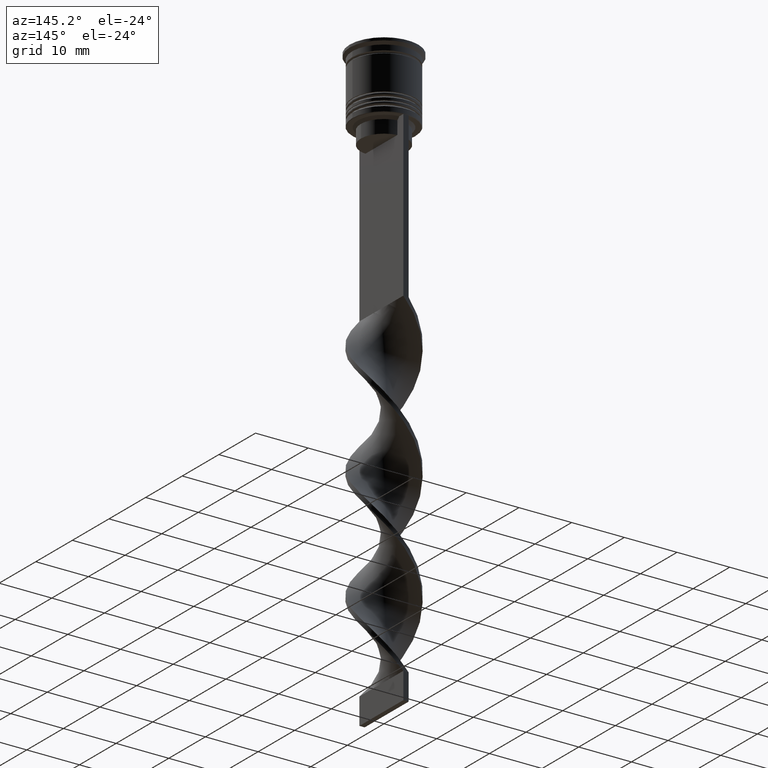
[diagram: clean part render]
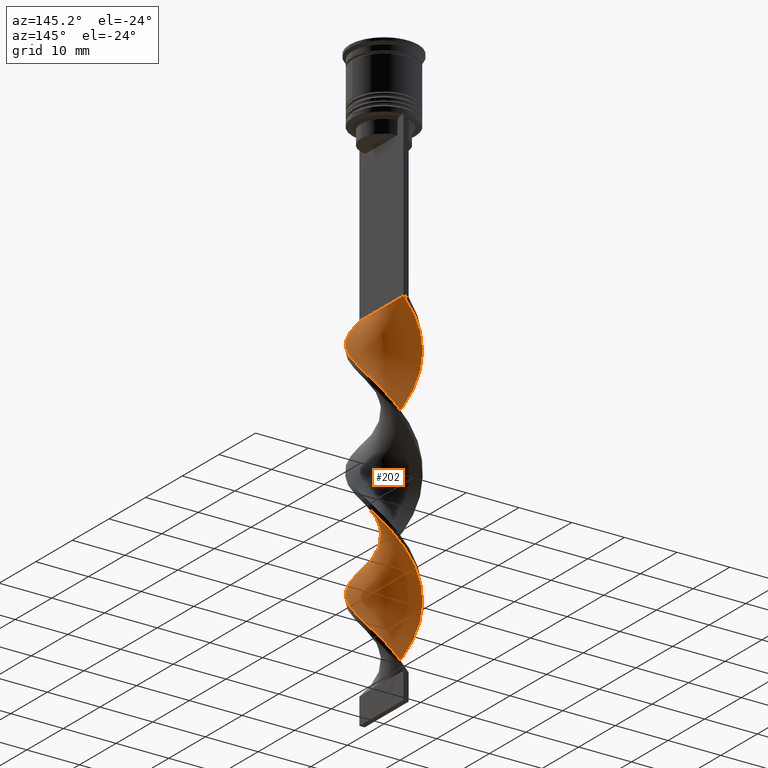
[diagram: same view with one face highlighted and labeled with its STEP entity id]
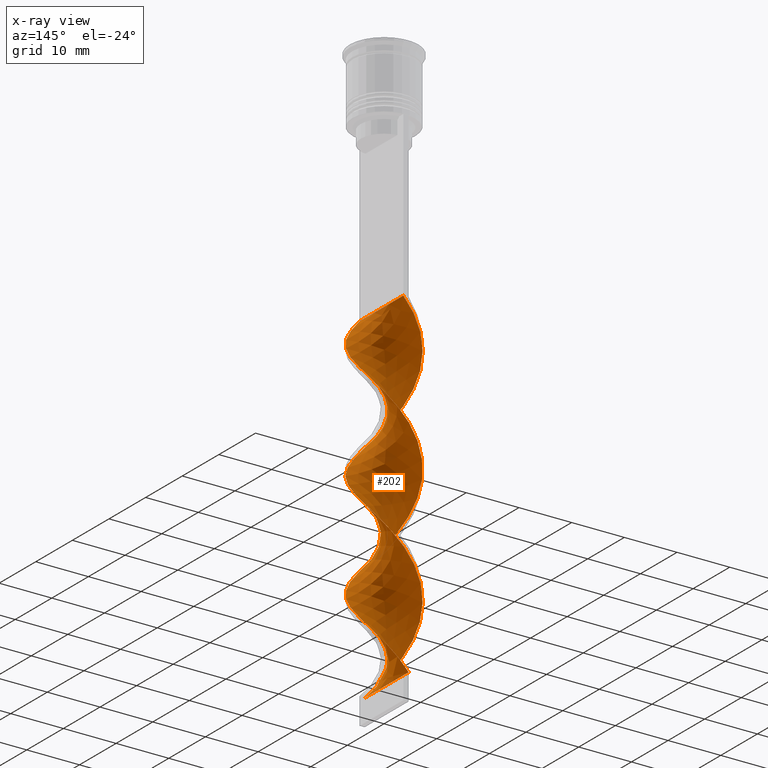
[diagram: x-ray of the same camera — body ghosted, the highlighted face saturated]
A machine part, auxiliary view. The second image highlights one B-rep face of the part: STEP entity #202.
The next image is the same camera in x-ray: the body ghosted, the highlighted face saturated — about 0% of this face is hidden behind the body in this view.
In plain terms, the highlighted face is a freeform B-spline surface patch.
Its self-contained STEP definition (entity closure, byte-faithful):
#15 = CARTESIAN_POINT ( 'NONE',  ( 3.018907784180934417, 5.260288998093234802, -103.3974358974358836 ) ) ;
#24 = CARTESIAN_POINT ( 'NONE',  ( 6.044068061194098007, -0.5036723384328427588, -75.50000000000000000 ) ) ;
#28 = CARTESIAN_POINT ( 'NONE',  ( 5.895984904460661369, 1.219574518580964329, -54.98717948717948190 ) ) ;
#31 = CARTESIAN_POINT ( 'NONE',  ( 4.352991323530321033, -4.159503159906209113, -91.08974358974359120 ) ) ;
#47 = CARTESIAN_POINT ( 'NONE',  ( 2.614197889543182107, -5.472697136436196708, -88.62820512820513841 ) ) ;
#61 = CARTESIAN_POINT ( 'NONE',  ( -0.5000000000000004441, -2.000000000000000888, -107.5000000000000000 ) ) ;
#88 = EDGE_CURVE ( 'NONE', #701, #3278, #2685, .T. ) ;
#104 = CARTESIAN_POINT ( 'NONE',  ( 2.345611019436006472, 5.545097739941142301, -104.2179487179487012 ) ) ;
#116 = CARTESIAN_POINT ( 'NONE',  ( -4.352991323530323697, -4.159503159906208225, -59.91025641025640880 ) ) ;
#137 = CARTESIAN_POINT ( 'NONE',  ( -4.190053366537507706, 4.384962638200773810, -91.91025641025643722 ) ) ;
#144 = CARTESIAN_POINT ( 'NONE',  ( 3.604480575359220840, 4.822625818147002086, -102.5769230769230660 ) ) ;
#154 = CARTESIAN_POINT ( 'NONE',  ( 2.345611019436006028, -5.545097739941144077, -68.11538461538459899 ) ) ;
#159 = CARTESIAN_POINT ( 'NONE',  ( 2.345611019436006028, -5.545097739941144077, -68.11538461538459899 ) ) ;
#174 = CARTESIAN_POINT ( 'NONE',  ( 0.9504230770123223149, 5.945308736700090080, -63.19230769230768630 ) ) ;
#176 = CARTESIAN_POINT ( 'NONE',  ( 1.921364894438372550, -5.705993072412533174, -45.14102564102563520 ) ) ;
#197 = CARTESIAN_POINT ( 'NONE',  ( -0.9504230770123205385, 5.945308736700091856, -87.80769230769230660 ) ) ;
#199 = DIRECTION ( 'NONE',  ( 0.000000000000000000, 1.000000000000000000, 0.000000000000000000 ) ) ;
#202 = ADVANCED_FACE ( 'NONE', ( #1542 ), #1673, .T. ) ;
#212 = CARTESIAN_POINT ( 'NONE',  ( 1.921364894438372550, -5.705993072412533174, -45.14102564102563520 ) ) ;
#214 = CARTESIAN_POINT ( 'NONE',  ( -4.190053366537509483, -4.384962638200768481, -80.42307692307691980 ) ) ;
#230 = CARTESIAN_POINT ( 'NONE',  ( -3.604480575359221728, -4.822625818147002086, -81.24358974358973740 ) ) ;
#234 = CARTESIAN_POINT ( 'NONE',  ( 5.117688277455212820, -3.254798188466756947, -72.21794871794871540 ) ) ;
#237 = CARTESIAN_POINT ( 'NONE',  ( 1.921364894438378323, 5.705993072412532285, -84.52564102564103621 ) ) ;
#243 = CARTESIAN_POINT ( 'NONE',  ( 0.5000000000000002220, -5.999999999999999112, -43.50000000000000000 ) ) ;
#245 = CARTESIAN_POINT ( 'NONE',  ( 1.228531899333563437, -5.939289008388868751, -86.98717948717948900 ) ) ;
#258 = CARTESIAN_POINT ( 'NONE',  ( 2.345611019436006472, 5.545097739941142301, -104.2179487179487012 ) ) ;
#272 = CARTESIAN_POINT ( 'NONE',  ( 5.895984904460661369, 1.219574518580964329, -97.65384615384614619 ) ) ;
#283 = CARTESIAN_POINT ( 'NONE',  ( 4.352991323530323697, 4.159503159906207337, -81.24358974358973740 ) ) ;
#304 = CARTESIAN_POINT ( 'NONE',  ( 5.895984904460661369, 1.219574518580964329, -97.65384615384614619 ) ) ;
#308 = CARTESIAN_POINT ( 'NONE',  ( -4.858046446425391629, 3.630954320453866568, -70.57692307692306599 ) ) ;
#319 = ORIENTED_EDGE ( 'NONE', *, *, #524, .F. ) ;
#320 = CARTESIAN_POINT ( 'NONE',  ( 4.352991323530321033, -4.159503159906209113, -91.08974358974359120 ) ) ;
#324 = CARTESIAN_POINT ( 'NONE',  ( 1.228531899333563215, -5.939289008388868751, -86.98717948717948900 ) ) ;
#374 = CARTESIAN_POINT ( 'NONE',  ( 3.018907784180934861, 5.260288998093234802, -103.3974358974358694 ) ) ;
#399 = CARTESIAN_POINT ( 'NONE',  ( -1.921364894438374993, -5.705993072412534062, -63.19230769230768630 ) ) ;
#404 = CARTESIAN_POINT ( 'NONE',  ( -0.5000000000000009992, -6.000000000000000888, -107.5000000000000000 ) ) ;
#420 = CARTESIAN_POINT ( 'NONE',  ( -4.858046446425395182, -3.630954320453863460, -101.7564102564102484 ) ) ;
#422 = CARTESIAN_POINT ( 'NONE',  ( -5.895984904460663145, 1.219574518580966771, -53.34615384615383959 ) ) ;
#424 = CARTESIAN_POINT ( 'NONE',  ( -5.895984904460663145, 1.219574518580966771, -53.34615384615383959 ) ) ;
#436 = CARTESIAN_POINT ( 'NONE',  ( 1.228531899333563215, -5.939289008388868751, -44.32051282051282470 ) ) ;
#437 = CARTESIAN_POINT ( 'NONE',  ( -5.117688277455214596, 3.254798188466754727, -93.55128205128204399 ) ) ;
#458 = CARTESIAN_POINT ( 'NONE',  ( 5.585824691029638522, -2.362838774426348376, -50.88461538461537970 ) ) ;
#459 = CARTESIAN_POINT ( 'NONE',  ( -5.895984904460663145, 1.219574518580966771, -96.01282051282051100 ) ) ;
#463 = CARTESIAN_POINT ( 'NONE',  ( -5.117688277455214596, 3.254798188466754727, -50.88461538461537970 ) ) ;
#478 = CARTESIAN_POINT ( 'NONE',  ( 3.847936200635251769, 4.688051999358553878, -82.06410256410255499 ) ) ;
#494 = CARTESIAN_POINT ( 'NONE',  ( 0.5000000000000002220, 6.000000000000000888, -43.50000000000000000 ) ) ;
#495 = CARTESIAN_POINT ( 'NONE',  ( -3.847936200635249104, 4.688051999358553878, -68.93589743589743080 ) ) ;
#498 = CARTESIAN_POINT ( 'NONE',  ( -4.352991323530323697, -4.159503159906208225, -59.91025641025640880 ) ) ;
#511 = CARTESIAN_POINT ( 'NONE',  ( 3.847936200635249993, -4.688051999358552990, -47.60256410256408799 ) ) ;
#518 = CARTESIAN_POINT ( 'NONE',  ( -3.018907784180934417, 5.260288998093236579, -90.26923076923077360 ) ) ;
#524 = EDGE_CURVE ( 'NONE', #3278, #830, #3370, .T. ) ;
#527 = CARTESIAN_POINT ( 'NONE',  ( -2.345611019436009581, -5.545097739941142301, -82.88461538461537259 ) ) ;
#529 = CARTESIAN_POINT ( 'NONE',  ( 5.988975108237873712, -0.9574036273986641365, -95.19230769230769340 ) ) ;
#540 = EDGE_LOOP ( 'NONE', ( #2429, #2805, #1988, #319 ) ) ;
#541 = CARTESIAN_POINT ( 'NONE',  ( 2.614197889543182107, -5.472697136436196708, -88.62820512820512420 ) ) ;
#548 = CARTESIAN_POINT ( 'NONE',  ( 3.847936200635252213, 4.688051999358553878, -82.06410256410255499 ) ) ;
#554 = CARTESIAN_POINT ( 'NONE',  ( -5.117688277455215484, -3.254798188466750286, -78.78205128205127039 ) ) ;
#565 = CARTESIAN_POINT ( 'NONE',  ( -3.231067045089217604, -5.080374567897375293, -104.2179487179487012 ) ) ;
#573 = CARTESIAN_POINT ( 'NONE',  ( -4.352991323530320145, 4.159503159906209113, -69.75641025641024839 ) ) ;
#591 = CARTESIAN_POINT ( 'NONE',  ( -5.895984904460662257, -1.219574518580961220, -76.32051282051281760 ) ) ;
#607 = CARTESIAN_POINT ( 'NONE',  ( 2.345611019436006472, 5.545097739941142301, -61.55128205128204399 ) ) ;
#667 = CARTESIAN_POINT ( 'NONE',  ( -3.604480575359219952, 4.822625818147005639, -91.08974358974359120 ) ) ;
#669 = CARTESIAN_POINT ( 'NONE',  ( -4.190053366537507706, 4.384962638200773810, -49.24358974358973740 ) ) ;
#679 = CARTESIAN_POINT ( 'NONE',  ( 5.432795012591220107, 2.595137443597919980, -99.29487179487178139 ) ) ;
#689 = CARTESIAN_POINT ( 'NONE',  ( 2.614197889543185216, 5.472697136436197596, -83.70512820512820440 ) ) ;
#691 = CARTESIAN_POINT ( 'NONE',  ( -5.747901747727229171, 1.935476698729089895, -52.52564102564103621 ) ) ;
#692 = CARTESIAN_POINT ( 'NONE',  ( 1.672314254691075641, -5.829906481789053352, -67.29487179487178139 ) ) ;
#701 = VERTEX_POINT ( 'NONE', #2845 ) ;
#707 = CARTESIAN_POINT ( 'NONE',  ( 5.747901747727229171, -1.935476698729089451, -73.85897435897436480 ) ) ;
#709 = CARTESIAN_POINT ( 'NONE',  ( -5.787399899633758338, -1.660121200912505479, -56.62820512820513130 ) ) ;
#724 = CARTESIAN_POINT ( 'NONE',  ( -4.653870821996361151, 3.819880413333764047, -92.73076923076922640 ) ) ;
#727 = CARTESIAN_POINT ( 'NONE',  ( 0.5000000000000002220, -6.000000000000000000, -43.50000000000000000 ) ) ;
#729 = CARTESIAN_POINT ( 'NONE',  ( -0.2285318993335630489, 6.060710991611131249, -44.32051282051282470 ) ) ;
#742 = CARTESIAN_POINT ( 'NONE',  ( 5.747901747727227395, 1.935476698729089229, -55.80769230769230660 ) ) ;
#744 = EDGE_CURVE ( 'NONE', #830, #3333, #2501, .T. ) ;
#745 = CARTESIAN_POINT ( 'NONE',  ( 3.231067045089220713, 5.080374567897373517, -82.88461538461537259 ) ) ;
#763 = CARTESIAN_POINT ( 'NONE',  ( 5.432795012591220107, 2.595137443597919980, -56.62820512820513130 ) ) ;
#771 = CARTESIAN_POINT ( 'NONE',  ( -3.847936200635251769, -4.688051999358553878, -103.3974358974358836 ) ) ;
#781 = CARTESIAN_POINT ( 'NONE',  ( -5.117688277455215484, -3.254798188466750730, -78.78205128205127039 ) ) ;
#795 = CARTESIAN_POINT ( 'NONE',  ( 6.044068061194096231, 0.5036723384328413156, -96.83333333333332860 ) ) ;
#798 = CARTESIAN_POINT ( 'NONE',  ( 5.988975108237873712, -0.9574036273986641365, -52.52564102564103621 ) ) ;
#805 = CARTESIAN_POINT ( 'NONE',  ( 6.016521584715985860, 0.2268656444829068586, -76.32051282051281760 ) ) ;
#830 = VERTEX_POINT ( 'NONE', #404 ) ;
#837 = CARTESIAN_POINT ( 'NONE',  ( -1.228531899333566324, -5.939289008388870528, -106.6794871794871824 ) ) ;
#843 = CARTESIAN_POINT ( 'NONE',  ( -1.672314254691079416, -5.829906481789051576, -83.70512820512820440 ) ) ;
#860 = CARTESIAN_POINT ( 'NONE',  ( -1.228531899333561883, 5.939289008388868751, -65.65384615384614619 ) ) ;
#881 = CARTESIAN_POINT ( 'NONE',  ( 3.231067045089215828, -5.080374567897374405, -46.78205128205127750 ) ) ;
#898 = CARTESIAN_POINT ( 'NONE',  ( 0.2285318993335655469, 6.060710991611128584, -106.6794871794871682 ) ) ;
#937 = CARTESIAN_POINT ( 'NONE',  ( 1.672314254691079194, 5.829906481789051576, -105.0384615384615330 ) ) ;
#947 = CARTESIAN_POINT ( 'NONE',  ( -3.847936200635251325, -4.688051999358553878, -103.3974358974358694 ) ) ;
#967 = CARTESIAN_POINT ( 'NONE',  ( 5.585824691029641187, 2.362838774426345712, -78.78205128205127039 ) ) ;
#971 = CARTESIAN_POINT ( 'NONE',  ( -0.5000000000000009992, -6.000000000000000888, -64.83333333333332860 ) ) ;
#987 = CARTESIAN_POINT ( 'NONE',  ( 1.672314254691078972, 5.829906481789051576, -62.37179487179486870 ) ) ;
#988 = CARTESIAN_POINT ( 'NONE',  ( -2.614197889543184328, -5.472697136436197596, -105.0384615384615330 ) ) ;
#1008 = CARTESIAN_POINT ( 'NONE',  ( 5.787399899633758338, 1.660121200912505923, -77.96153846153845279 ) ) ;
#1010 = CARTESIAN_POINT ( 'NONE',  ( -5.585824691029640299, -2.362838774426348376, -57.44871794871794890 ) ) ;
#1013 = CARTESIAN_POINT ( 'NONE',  ( -0.4999999999999994449, 5.999999999999999112, -107.5000000000000000 ) ) ;
#1024 = CARTESIAN_POINT ( 'NONE',  ( 6.016521584715984972, -0.2268656444829120489, -53.34615384615383959 ) ) ;
#1026 = CARTESIAN_POINT ( 'NONE',  ( 0.5000000000000002220, -5.999999999999999112, -43.50000000000000000 ) ) ;
#1042 = CARTESIAN_POINT ( 'NONE',  ( 5.117688277455212820, 3.254798188466753395, -57.44871794871794890 ) ) ;
#1045 = CARTESIAN_POINT ( 'NONE',  ( -5.432795012591220107, -2.595137443597920868, -77.96153846153845279 ) ) ;
#1050 = CARTESIAN_POINT ( 'NONE',  ( -6.044068061194098007, 0.5036723384328419817, -54.16666666666666430 ) ) ;
#1062 = CARTESIAN_POINT ( 'NONE',  ( 4.858046446425392517, -3.630954320453864348, -49.24358974358974450 ) ) ;
#1063 = CARTESIAN_POINT ( 'NONE',  ( -2.614197889543180331, 5.472697136436197596, -67.29487179487178139 ) ) ;
#1067 = CARTESIAN_POINT ( 'NONE',  ( 4.190053366537505930, -4.384962638200776475, -70.57692307692306599 ) ) ;
#1071 = CARTESIAN_POINT ( 'NONE',  ( -4.858046446425395182, -3.630954320453863460, -101.7564102564102484 ) ) ;
#1077 = CARTESIAN_POINT ( 'NONE',  ( -5.432795012591220107, -2.595137443597920868, -77.96153846153845279 ) ) ;
#1078 = CARTESIAN_POINT ( 'NONE',  ( 4.858046446425392517, -3.630954320453864348, -91.91025641025643722 ) ) ;
#1085 = CARTESIAN_POINT ( 'NONE',  ( -0.2285318993335630489, 6.060710991611131249, -86.98717948717948900 ) ) ;
#1093 = CARTESIAN_POINT ( 'NONE',  ( 3.847936200635249993, -4.688051999358552990, -90.26923076923077360 ) ) ;
#1100 = CARTESIAN_POINT ( 'NONE',  ( -5.432795012591220996, 2.595137443597922644, -94.37179487179486159 ) ) ;
#1116 = CARTESIAN_POINT ( 'NONE',  ( 4.858046446425397846, 3.630954320453860795, -80.42307692307691980 ) ) ;
#1137 = CARTESIAN_POINT ( 'NONE',  ( -5.585824691029637634, 2.362838774426351485, -72.21794871794871540 ) ) ;
#1140 = CARTESIAN_POINT ( 'NONE',  ( 5.221935568727515076, -2.996896547440107028, -92.73076923076922640 ) ) ;
#1155 = CARTESIAN_POINT ( 'NONE',  ( -6.016521584715984972, 0.2268656444829141028, -74.67948717948718240 ) ) ;
#1168 = CARTESIAN_POINT ( 'NONE',  ( -0.5000000000000000000, 1.999999999999999112, -107.5000000000000000 ) ) ;
#1220 = CARTESIAN_POINT ( 'NONE',  ( -4.352991323530323697, -4.159503159906208225, -102.5769230769230660 ) ) ;
#1239 = CARTESIAN_POINT ( 'NONE',  ( -3.231067045089217604, -5.080374567897375293, -104.2179487179487012 ) ) ;
#1244 = CARTESIAN_POINT ( 'NONE',  ( -1.921364894438374993, -5.705993072412534062, -63.19230769230768630 ) ) ;
#1257 = CARTESIAN_POINT ( 'NONE',  ( -3.231067045089217604, -5.080374567897375293, -61.55128205128204399 ) ) ;
#1281 = CARTESIAN_POINT ( 'NONE',  ( 0.2285318993335655469, 6.060710991611129472, -64.01282051282051100 ) ) ;
#1282 = CARTESIAN_POINT ( 'NONE',  ( -1.228531899333566546, -5.939289008388870528, -64.01282051282051100 ) ) ;
#1287 = CARTESIAN_POINT ( 'NONE',  ( -0.9504230770123205385, 5.945308736700091856, -45.14102564102563520 ) ) ;
#1305 = CARTESIAN_POINT ( 'NONE',  ( -1.228531899333566546, -5.939289008388870528, -106.6794871794871682 ) ) ;
#1308 = CARTESIAN_POINT ( 'NONE',  ( -5.432795012591220996, 2.595137443597922644, -51.70512820512820440 ) ) ;
#1320 = CARTESIAN_POINT ( 'NONE',  ( 5.432795012591220107, 2.595137443597919980, -56.62820512820513130 ) ) ;
#1321 = CARTESIAN_POINT ( 'NONE',  ( 5.787399899633755673, -1.660121200912507033, -51.70512820512820440 ) ) ;
#1338 = CARTESIAN_POINT ( 'NONE',  ( 4.653870821996360263, 3.819880413333762270, -58.26923076923076650 ) ) ;
#1340 = CARTESIAN_POINT ( 'NONE',  ( 0.2285318993335655469, 6.060710991611128584, -64.01282051282051100 ) ) ;
#1344 = CARTESIAN_POINT ( 'NONE',  ( 5.432795012591220996, -2.595137443597923532, -73.03846153846153300 ) ) ;
#1347 = CARTESIAN_POINT ( 'NONE',  ( -4.190053366537507706, 4.384962638200774698, -91.91025641025643722 ) ) ;
#1355 = CARTESIAN_POINT ( 'NONE',  ( 6.044068061194096231, 0.5036723384328413156, -54.16666666666666430 ) ) ;
#1356 = CARTESIAN_POINT ( 'NONE',  ( 3.231067045089215828, -5.080374567897374405, -89.44871794871794179 ) ) ;
#1362 = CARTESIAN_POINT ( 'NONE',  ( -1.672314254691077640, 5.829906481789053352, -88.62820512820512420 ) ) ;
#1368 = CARTESIAN_POINT ( 'NONE',  ( 3.604480575359220840, 4.822625818147002086, -102.5769230769230660 ) ) ;
#1385 = CARTESIAN_POINT ( 'NONE',  ( -5.585824691029636746, 2.362838774426351485, -72.21794871794871540 ) ) ;
#1393 = CARTESIAN_POINT ( 'NONE',  ( -5.747901747727229171, 1.935476698729089895, -95.19230769230769340 ) ) ;
#1403 = CARTESIAN_POINT ( 'NONE',  ( 3.231067045089215828, -5.080374567897374405, -89.44871794871794179 ) ) ;
#1412 = CARTESIAN_POINT ( 'NONE',  ( -5.221935568727517740, -2.996896547440106584, -100.9358974358974308 ) ) ;
#1417 = CARTESIAN_POINT ( 'NONE',  ( 5.747901747727227395, 1.935476698729089007, -98.47435897435896379 ) ) ;
#1421 = CARTESIAN_POINT ( 'NONE',  ( -5.221935568727515076, 2.996896547440107028, -71.39743589743588359 ) ) ;
#1434 = CARTESIAN_POINT ( 'NONE',  ( -1.921364894438370552, 5.705993072412533174, -66.47435897435896379 ) ) ;
#1515 =( BOUNDED_CURVE ( )  B_SPLINE_CURVE ( 2, ( #243, #436, #212, #2933, #2413, #1849, #2681, #1062, #2951, #458, #1556, #1612, #1024, #1355, #3242, #742, #1320, #1042, #1338, #3279, #3537, #3480, #2659, #987, #174, #1281, #1579, #2990, #2392, #3502, #2119, #3224, #573, #308, #1421, #1385, #1717, #2782, #2514, #2530, #3575, #3055, #1077, #554, #1989, #2235, #3344, #2208, #527, #843, #2817, #3294, #2803, #324, #1936, #541, #1403, #1093, #31, #1697, #1140, #2763, #1646, #2189, #2750, #795, #272, #3075, #2466, #2496, #1661, #3313, #1368, #15, #258, #3330, #1679, #2252, #3608 ),
 .UNSPECIFIED., .F., .T. ) 
 B_SPLINE_CURVE_WITH_KNOTS ( ( 3, 2, 2, 2, 2, 2, 2, 2, 2, 2, 2, 2, 2, 2, 2, 2, 2, 2, 2, 2, 2, 2, 2, 2, 2, 2, 2, 2, 2, 2, 2, 2, 2, 2, 2, 2, 2, 2, 2, 3 ),
 ( 0.000000000000000000, 0.01923076923076923184, 0.03846153846153846367, 0.05769230769230768857, 0.07692307692307692735, 0.09615384615384615918, 0.1153846153846153771, 0.1346153846153846090, 0.1538461538461538547, 0.1730769230769230449, 0.1923076923076923184, 0.2115384615384615363, 0.2307692307692307543, 0.2500000000000000000, 0.2692307692307692180, 0.2884615384615384359, 0.3076923076923077094, 0.3269230769230769273, 0.3461538461538460898, 0.3653846153846153633, 0.3846153846153846367, 0.4038461538461539102, 0.4230769230769230727, 0.4423076923076922906, 0.4615384615384615086, 0.4807692307692307820, 0.5000000000000000000, 0.5192307692307692735, 0.5384615384615384359, 0.5576923076923077094, 0.5769230769230768718, 0.5961538461538461453, 0.6153846153846154188, 0.6346153846153845812, 0.6538461538461538547, 0.6730769230769230171, 0.6923076923076921796, 0.7115384615384615641, 0.7307692307692307265, 0.7500000000000000000 ),
 .UNSPECIFIED. ) 
 CURVE ( )  GEOMETRIC_REPRESENTATION_ITEM ( )  RATIONAL_B_SPLINE_CURVE ( ( 1.000000000000000000, 0.9927088740980539727, 1.000000000000000000, 0.9927088740980539727, 1.000000000000000000, 0.9927088740980539727, 1.000000000000000000, 0.9927088740980539727, 1.000000000000000000, 0.9927088740980539727, 1.000000000000000000, 0.9927088740980539727, 1.000000000000000000, 0.9927088740980539727, 1.000000000000000000, 0.9927088740980539727, 1.000000000000000000, 0.9927088740980539727, 1.000000000000000000, 0.9927088740980539727, 1.000000000000000000, 0.9927088740980539727, 1.000000000000000000, 0.9927088740980539727, 1.000000000000000000, 0.9927088740980539727, 1.000000000000000000, 0.9927088740980539727, 1.000000000000000000, 0.9927088740980539727, 1.000000000000000000, 0.9927088740980539727, 1.000000000000000000, 0.9927088740980539727, 1.000000000000000000, 0.9927088740980539727, 1.000000000000000000, 0.9927088740980539727, 1.000000000000000000, 0.9927088740980539727, 1.000000000000000000, 0.9927088740980539727, 1.000000000000000000, 0.9927088740980539727, 1.000000000000000000, 0.9927088740980539727, 1.000000000000000000, 0.9927088740980539727, 1.000000000000000000, 0.9927088740980539727, 1.000000000000000000, 0.9927088740980539727, 1.000000000000000000, 0.9927088740980539727, 1.000000000000000000, 0.9927088740980539727, 1.000000000000000000, 0.9927088740980539727, 1.000000000000000000, 0.9927088740980539727, 1.000000000000000000, 0.9927088740980539727, 1.000000000000000000, 0.9927088740980539727, 1.000000000000000000, 0.9927088740980539727, 1.000000000000000000, 0.9927088740980539727, 1.000000000000000000, 0.9927088740980539727, 1.000000000000000000, 0.9927088740980539727, 1.000000000000000000, 0.9927088740980539727, 1.000000000000000000, 0.9927088740980539727, 1.000000000000000000, 0.9927088740980539727, 1.000000000000000000 ) ) 
 REPRESENTATION_ITEM ( '' )  );
#1520 = CARTESIAN_POINT ( 'NONE',  ( 5.117688277455212820, -3.254798188466757392, -72.21794871794871540 ) ) ;
#1540 = CARTESIAN_POINT ( 'NONE',  ( 4.190053366537505930, -4.384962638200775586, -70.57692307692306599 ) ) ;
#1542 = FACE_OUTER_BOUND ( 'NONE', #540, .T. ) ;
#1544 = CARTESIAN_POINT ( 'NONE',  ( -5.221935568727517740, -2.996896547440106584, -58.26923076923076650 ) ) ;
#1556 = CARTESIAN_POINT ( 'NONE',  ( 5.787399899633755673, -1.660121200912507033, -51.70512820512820440 ) ) ;
#1558 = CARTESIAN_POINT ( 'NONE',  ( -5.432795012591220996, 2.595137443597922644, -94.37179487179486159 ) ) ;
#1579 = CARTESIAN_POINT ( 'NONE',  ( -0.4999999999999994449, 5.999999999999999112, -64.83333333333332860 ) ) ;
#1580 = CARTESIAN_POINT ( 'NONE',  ( -5.988975108237874601, -0.9574036273986639145, -98.47435897435896379 ) ) ;
#1596 = CARTESIAN_POINT ( 'NONE',  ( 1.921364894438378323, 5.705993072412532285, -84.52564102564103621 ) ) ;
#1612 = CARTESIAN_POINT ( 'NONE',  ( 5.988975108237873712, -0.9574036273986640255, -52.52564102564102910 ) ) ;
#1613 = CARTESIAN_POINT ( 'NONE',  ( 5.585824691029639411, -2.362838774426348376, -93.55128205128204399 ) ) ;
#1617 = CARTESIAN_POINT ( 'NONE',  ( -3.847936200635251769, -4.688051999358553878, -60.73076923076922640 ) ) ;
#1621 = CARTESIAN_POINT ( 'NONE',  ( 5.988975108237876377, 0.9574036273986615830, -77.14102564102563520 ) ) ;
#1631 = CARTESIAN_POINT ( 'NONE',  ( 1.672314254691079194, 5.829906481789051576, -62.37179487179486870 ) ) ;
#1637 = CARTESIAN_POINT ( 'NONE',  ( -3.604480575359219952, 4.822625818147005639, -91.08974358974359120 ) ) ;
#1646 = CARTESIAN_POINT ( 'NONE',  ( 5.787399899633755673, -1.660121200912507033, -94.37179487179486159 ) ) ;
#1648 = CARTESIAN_POINT ( 'NONE',  ( 6.016521584715984972, -0.2268656444829120489, -96.01282051282051100 ) ) ;
#1655 = CARTESIAN_POINT ( 'NONE',  ( 1.228531899333567212, 5.939289008388870528, -85.34615384615385381 ) ) ;
#1661 = CARTESIAN_POINT ( 'NONE',  ( 4.653870821996360263, 3.819880413333762270, -100.9358974358974308 ) ) ;
#1669 = CARTESIAN_POINT ( 'NONE',  ( -5.988975108237876377, -0.9574036273986638035, -98.47435897435896379 ) ) ;
#1673 =( BOUNDED_SURFACE ( )  B_SPLINE_SURFACE ( 1, 2, ( 
 ( #3167, #1874, #3448, #1815, #2700, #2336, #2062, #669, #3464, #2082, #3189, #691, #422, #2374, #3485, #3208, #709, #1010, #2937, #3165, #116, #2624, #1257, #2953, #399, #1282, #2353, #2934, #3226, #1812, #154, #3445, #1872, #1540, #3462, #1520, #2973, #707, #2334, #1833, #3244, #3504, #1008, #967, #1792, #3482, #3521, #478, #745, #689, #1596, #2641, #2371, #2079, #197, #1850, #2414, #3186, #667, #137, #724, #437, #1558, #2120, #459, #2917, #2137, #1580, #2682, #2897, #2060, #420, #1220, #947, #1239, #988, #2101, #1305, #3206 ),
 ( #1026, #2660, #176, #2394, #881, #511, #2450, #2991, #2002, #3296, #1321, #798, #2267, #2527, #28, #3560, #763, #2467, #2543, #3106, #3382, #3280, #607, #1631, #2734, #1340, #2813, #860, #1434, #1063, #3264, #495, #2248, #1921, #3024, #1137, #1984, #2175, #1155, #3092, #591, #2159, #1045, #781, #2699, #214, #230, #3007, #2432, #1905, #2190, #3576, #3360, #245, #1713, #47, #1356, #1890, #320, #1078, #3539, #1613, #2714, #529, #1648, #2799, #304, #1417, #679, #2829, #2033, #2051, #144, #374, #104, #937, #1804, #898, #2906 ) ),
 .UNSPECIFIED., .F., .F., .F. ) 
 B_SPLINE_SURFACE_WITH_KNOTS ( ( 2, 2 ),
 ( 3, 2, 2, 2, 2, 2, 2, 2, 2, 2, 2, 2, 2, 2, 2, 2, 2, 2, 2, 2, 2, 2, 2, 2, 2, 2, 2, 2, 2, 2, 2, 2, 2, 2, 2, 2, 2, 2, 2, 3 ),
 ( 0.000000000000000000, 1.000000000000000000 ),
 ( 0.000000000000000000, 0.01923076923076923184, 0.03846153846153846367, 0.05769230769230769551, 0.07692307692307692735, 0.09615384615384615918, 0.1153846153846153910, 0.1346153846153846090, 0.1538461538461538547, 0.1730769230769230727, 0.1923076923076923184, 0.2115384615384615363, 0.2307692307692307820, 0.2500000000000000000, 0.2692307692307692180, 0.2884615384615384359, 0.3076923076923077094, 0.3269230769230769273, 0.3461538461538461453, 0.3653846153846153633, 0.3846153846153846367, 0.4038461538461538547, 0.4230769230769230727, 0.4423076923076922906, 0.4615384615384615641, 0.4807692307692307820, 0.5000000000000000000, 0.5192307692307692735, 0.5384615384615384359, 0.5576923076923077094, 0.5769230769230768718, 0.5961538461538461453, 0.6153846153846154188, 0.6346153846153845812, 0.6538461538461538547, 0.6730769230769231282, 0.6923076923076922906, 0.7115384615384615641, 0.7307692307692307265, 0.7500000000000000000 ),
 .UNSPECIFIED. ) 
 GEOMETRIC_REPRESENTATION_ITEM ( )  RATIONAL_B_SPLINE_SURFACE ( (
 ( 1.000000000000000000, 0.9927088740980539727, 1.000000000000000000, 0.9927088740980539727, 1.000000000000000000, 0.9927088740980539727, 1.000000000000000000, 0.9927088740980539727, 1.000000000000000000, 0.9927088740980539727, 1.000000000000000000, 0.9927088740980539727, 1.000000000000000000, 0.9927088740980539727, 1.000000000000000000, 0.9927088740980539727, 1.000000000000000000, 0.9927088740980539727, 1.000000000000000000, 0.9927088740980539727, 1.000000000000000000, 0.9927088740980539727, 1.000000000000000000, 0.9927088740980539727, 1.000000000000000000, 0.9927088740980539727, 1.000000000000000000, 0.9927088740980539727, 1.000000000000000000, 0.9927088740980539727, 1.000000000000000000, 0.9927088740980539727, 1.000000000000000000, 0.9927088740980539727, 1.000000000000000000, 0.9927088740980539727, 1.000000000000000000, 0.9927088740980539727, 1.000000000000000000, 0.9927088740980539727, 1.000000000000000000, 0.9927088740980539727, 1.000000000000000000, 0.9927088740980539727, 1.000000000000000000, 0.9927088740980539727, 1.000000000000000000, 0.9927088740980539727, 1.000000000000000000, 0.9927088740980539727, 1.000000000000000000, 0.9927088740980539727, 1.000000000000000000, 0.9927088740980539727, 1.000000000000000000, 0.9927088740980539727, 1.000000000000000000, 0.9927088740980539727, 1.000000000000000000, 0.9927088740980539727, 1.000000000000000000, 0.9927088740980539727, 1.000000000000000000, 0.9927088740980539727, 1.000000000000000000, 0.9927088740980539727, 1.000000000000000000, 0.9927088740980539727, 1.000000000000000000, 0.9927088740980539727, 1.000000000000000000, 0.9927088740980539727, 1.000000000000000000, 0.9927088740980539727, 1.000000000000000000, 0.9927088740980539727, 1.000000000000000000, 0.9927088740980539727, 1.000000000000000000),
 ( 1.000000000000000000, 0.9927088740980539727, 1.000000000000000000, 0.9927088740980539727, 1.000000000000000000, 0.9927088740980539727, 1.000000000000000000, 0.9927088740980539727, 1.000000000000000000, 0.9927088740980539727, 1.000000000000000000, 0.9927088740980539727, 1.000000000000000000, 0.9927088740980539727, 1.000000000000000000, 0.9927088740980539727, 1.000000000000000000, 0.9927088740980539727, 1.000000000000000000, 0.9927088740980539727, 1.000000000000000000, 0.9927088740980539727, 1.000000000000000000, 0.9927088740980539727, 1.000000000000000000, 0.9927088740980539727, 1.000000000000000000, 0.9927088740980539727, 1.000000000000000000, 0.9927088740980539727, 1.000000000000000000, 0.9927088740980539727, 1.000000000000000000, 0.9927088740980539727, 1.000000000000000000, 0.9927088740980539727, 1.000000000000000000, 0.9927088740980539727, 1.000000000000000000, 0.9927088740980539727, 1.000000000000000000, 0.9927088740980539727, 1.000000000000000000, 0.9927088740980539727, 1.000000000000000000, 0.9927088740980539727, 1.000000000000000000, 0.9927088740980539727, 1.000000000000000000, 0.9927088740980539727, 1.000000000000000000, 0.9927088740980539727, 1.000000000000000000, 0.9927088740980539727, 1.000000000000000000, 0.9927088740980539727, 1.000000000000000000, 0.9927088740980539727, 1.000000000000000000, 0.9927088740980539727, 1.000000000000000000, 0.9927088740980539727, 1.000000000000000000, 0.9927088740980539727, 1.000000000000000000, 0.9927088740980539727, 1.000000000000000000, 0.9927088740980539727, 1.000000000000000000, 0.9927088740980539727, 1.000000000000000000, 0.9927088740980539727, 1.000000000000000000, 0.9927088740980539727, 1.000000000000000000, 0.9927088740980539727, 1.000000000000000000, 0.9927088740980539727, 1.000000000000000000) ) ) 
 REPRESENTATION_ITEM ( '' )  SURFACE ( )  );
#1679 = CARTESIAN_POINT ( 'NONE',  ( 0.9504230770123223149, 5.945308736700090080, -105.8589743589743506 ) ) ;
#1689 = CARTESIAN_POINT ( 'NONE',  ( 2.614197889543185216, 5.472697136436197596, -83.70512820512820440 ) ) ;
#1697 = CARTESIAN_POINT ( 'NONE',  ( 4.858046446425392517, -3.630954320453864348, -91.91025641025643722 ) ) ;
#1713 = CARTESIAN_POINT ( 'NONE',  ( 1.921364894438372550, -5.705993072412533174, -87.80769230769230660 ) ) ;
#1717 = CARTESIAN_POINT ( 'NONE',  ( -5.787399899633755673, 1.660121200912507478, -73.03846153846153300 ) ) ;
#1792 = CARTESIAN_POINT ( 'NONE',  ( 5.221935568727518628, 2.996896547440106140, -79.60256410256410220 ) ) ;
#1804 = CARTESIAN_POINT ( 'NONE',  ( 0.9504230770123223149, 5.945308736700090080, -105.8589743589743506 ) ) ;
#1812 = CARTESIAN_POINT ( 'NONE',  ( 1.672314254691075641, -5.829906481789053352, -67.29487179487178139 ) ) ;
#1815 = CARTESIAN_POINT ( 'NONE',  ( -1.672314254691077862, 5.829906481789053352, -45.96153846153845279 ) ) ;
#1833 = CARTESIAN_POINT ( 'NONE',  ( 6.044068061194098007, -0.5036723384328427588, -75.49999999999998579 ) ) ;
#1837 = CARTESIAN_POINT ( 'NONE',  ( -1.228531899333566324, -5.939289008388870528, -64.01282051282051100 ) ) ;
#1849 = CARTESIAN_POINT ( 'NONE',  ( 3.847936200635249993, -4.688051999358552990, -47.60256410256409509 ) ) ;
#1850 = CARTESIAN_POINT ( 'NONE',  ( -1.672314254691077862, 5.829906481789053352, -88.62820512820513841 ) ) ;
#1872 = CARTESIAN_POINT ( 'NONE',  ( 3.604480575359219952, -4.822625818147006527, -69.75641025641024839 ) ) ;
#1874 = CARTESIAN_POINT ( 'NONE',  ( -0.2285318993335630489, 6.060710991611130360, -44.32051282051282470 ) ) ;
#1890 = CARTESIAN_POINT ( 'NONE',  ( 3.847936200635249993, -4.688051999358552990, -90.26923076923075939 ) ) ;
#1893 = CARTESIAN_POINT ( 'NONE',  ( -4.190053366537507706, 4.384962638200774698, -49.24358974358974450 ) ) ;
#1897 = CARTESIAN_POINT ( 'NONE',  ( 0.5000000000000002220, 6.000000000000000888, -86.16666666666667140 ) ) ;
#1905 = CARTESIAN_POINT ( 'NONE',  ( -1.672314254691079638, -5.829906481789051576, -83.70512820512820440 ) ) ;
#1921 = CARTESIAN_POINT ( 'NONE',  ( -4.858046446425391629, 3.630954320453866568, -70.57692307692306599 ) ) ;
#1936 = CARTESIAN_POINT ( 'NONE',  ( 1.921364894438372550, -5.705993072412533174, -87.80769230769230660 ) ) ;
#1984 = CARTESIAN_POINT ( 'NONE',  ( -5.787399899633755673, 1.660121200912507478, -73.03846153846153300 ) ) ;
#1988 = ORIENTED_EDGE ( 'NONE', *, *, #744, .F. ) ;
#1989 = CARTESIAN_POINT ( 'NONE',  ( -4.653870821996361151, -3.819880413333761826, -79.60256410256410220 ) ) ;
#2002 = CARTESIAN_POINT ( 'NONE',  ( 5.221935568727515076, -2.996896547440107028, -50.06410256410256210 ) ) ;
#2033 = CARTESIAN_POINT ( 'NONE',  ( 4.653870821996360263, 3.819880413333762270, -100.9358974358974308 ) ) ;
#2051 = CARTESIAN_POINT ( 'NONE',  ( 4.190053366537507706, 4.384962638200771146, -101.7564102564102484 ) ) ;
#2060 = CARTESIAN_POINT ( 'NONE',  ( -5.221935568727517740, -2.996896547440106584, -100.9358974358974308 ) ) ;
#2062 = CARTESIAN_POINT ( 'NONE',  ( -3.604480575359219952, 4.822625818147005639, -48.42307692307691269 ) ) ;
#2079 = CARTESIAN_POINT ( 'NONE',  ( -0.2285318993335630489, 6.060710991611130360, -86.98717948717948900 ) ) ;
#2082 = CARTESIAN_POINT ( 'NONE',  ( -5.117688277455214596, 3.254798188466754727, -50.88461538461538680 ) ) ;
#2085 = CARTESIAN_POINT ( 'NONE',  ( 0.2285318993335617443, -6.060710991611131249, -65.65384615384614619 ) ) ;
#2099 = CARTESIAN_POINT ( 'NONE',  ( -0.4999999999999994449, 5.999999999999999112, -107.5000000000000000 ) ) ;
#2101 = CARTESIAN_POINT ( 'NONE',  ( -1.921364894438374993, -5.705993072412534062, -105.8589743589743506 ) ) ;
#2119 = CARTESIAN_POINT ( 'NONE',  ( -3.231067045089215384, 5.080374567897374405, -68.11538461538459899 ) ) ;
#2120 = CARTESIAN_POINT ( 'NONE',  ( -5.747901747727229171, 1.935476698729089895, -95.19230769230769340 ) ) ;
#2137 = CARTESIAN_POINT ( 'NONE',  ( -6.016521584715986748, -0.2268656444829102170, -97.65384615384614619 ) ) ;
#2159 = CARTESIAN_POINT ( 'NONE',  ( -5.747901747727229171, -1.935476698729086786, -77.14102564102563520 ) ) ;
#2164 = CARTESIAN_POINT ( 'NONE',  ( -5.988975108237876377, -0.9574036273986638035, -55.80769230769230660 ) ) ;
#2168 = CARTESIAN_POINT ( 'NONE',  ( 5.787399899633758338, 1.660121200912505923, -77.96153846153845279 ) ) ;
#2175 = CARTESIAN_POINT ( 'NONE',  ( -5.988975108237873712, 0.9574036273986636925, -73.85897435897436480 ) ) ;
#2178 = CARTESIAN_POINT ( 'NONE',  ( 4.653870821996361151, -3.819880413333764047, -71.39743589743588359 ) ) ;
#2189 = CARTESIAN_POINT ( 'NONE',  ( 5.988975108237873712, -0.9574036273986640255, -95.19230769230769340 ) ) ;
#2190 = CARTESIAN_POINT ( 'NONE',  ( -0.9504230770123257566, -5.945308736700090080, -84.52564102564103621 ) ) ;
#2208 = CARTESIAN_POINT ( 'NONE',  ( -3.018907784180934861, -5.260288998093234802, -82.06410256410255499 ) ) ;
#2215 = CARTESIAN_POINT ( 'NONE',  ( -0.5000000000000009992, -6.000000000000000888, -107.5000000000000000 ) ) ;
#2228 = CARTESIAN_POINT ( 'NONE',  ( -2.345611019436006028, 5.545097739941144077, -89.44871794871794179 ) ) ;
#2235 = CARTESIAN_POINT ( 'NONE',  ( -4.190053366537509483, -4.384962638200769369, -80.42307692307691980 ) ) ;
#2248 = CARTESIAN_POINT ( 'NONE',  ( -4.352991323530320145, 4.159503159906209113, -69.75641025641024839 ) ) ;
#2252 = CARTESIAN_POINT ( 'NONE',  ( 0.2285318993335655469, 6.060710991611129472, -106.6794871794871824 ) ) ;
#2267 = CARTESIAN_POINT ( 'NONE',  ( 6.016521584715984972, -0.2268656444829120489, -53.34615384615383959 ) ) ;
#2334 = CARTESIAN_POINT ( 'NONE',  ( 5.895984904460663145, -1.219574518580968769, -74.67948717948718240 ) ) ;
#2336 = CARTESIAN_POINT ( 'NONE',  ( -3.018907784180934861, 5.260288998093236579, -47.60256410256408799 ) ) ;
#2353 = CARTESIAN_POINT ( 'NONE',  ( -0.5000000000000009992, -6.000000000000000888, -64.83333333333332860 ) ) ;
#2358 = CARTESIAN_POINT ( 'NONE',  ( -2.345611019436006028, 5.545097739941144077, -46.78205128205127750 ) ) ;
#2371 = CARTESIAN_POINT ( 'NONE',  ( 0.5000000000000002220, 6.000000000000000888, -86.16666666666667140 ) ) ;
#2374 = CARTESIAN_POINT ( 'NONE',  ( -6.044068061194098007, 0.5036723384328419817, -54.16666666666665719 ) ) ;
#2378 = CARTESIAN_POINT ( 'NONE',  ( 3.018907784180933973, -5.260288998093237467, -68.93589743589743080 ) ) ;
#2392 = CARTESIAN_POINT ( 'NONE',  ( -1.921364894438370552, 5.705993072412533174, -66.47435897435896379 ) ) ;
#2394 = CARTESIAN_POINT ( 'NONE',  ( 2.614197889543182107, -5.472697136436196708, -45.96153846153845279 ) ) ;
#2400 = CARTESIAN_POINT ( 'NONE',  ( 0.5000000000000002220, 6.000000000000000888, -43.50000000000000000 ) ) ;
#2413 = CARTESIAN_POINT ( 'NONE',  ( 3.231067045089215828, -5.080374567897374405, -46.78205128205127750 ) ) ;
#2414 = CARTESIAN_POINT ( 'NONE',  ( -2.345611019436006028, 5.545097739941144077, -89.44871794871794179 ) ) ;
#2418 = CARTESIAN_POINT ( 'NONE',  ( -6.016521584715986748, -0.2268656444829102170, -54.98717948717948190 ) ) ;
#2429 = ORIENTED_EDGE ( 'NONE', *, *, #88, .F. ) ;
#2432 = CARTESIAN_POINT ( 'NONE',  ( -2.345611019436009581, -5.545097739941142301, -82.88461538461537259 ) ) ;
#2436 = CARTESIAN_POINT ( 'NONE',  ( -1.672314254691077640, 5.829906481789053352, -45.96153846153845990 ) ) ;
#2450 = CARTESIAN_POINT ( 'NONE',  ( 4.352991323530321033, -4.159503159906209113, -48.42307692307691269 ) ) ;
#2456 = CARTESIAN_POINT ( 'NONE',  ( 5.895984904460663145, -1.219574518580968769, -74.67948717948718240 ) ) ;
#2460 = CARTESIAN_POINT ( 'NONE',  ( -5.895984904460663145, 1.219574518580966771, -96.01282051282051100 ) ) ;
#2466 = CARTESIAN_POINT ( 'NONE',  ( 5.432795012591220107, 2.595137443597919980, -99.29487179487178139 ) ) ;
#2467 = CARTESIAN_POINT ( 'NONE',  ( 5.117688277455212820, 3.254798188466753395, -57.44871794871794890 ) ) ;
#2474 = CARTESIAN_POINT ( 'NONE',  ( 3.231067045089220713, 5.080374567897373517, -82.88461538461537259 ) ) ;
#2496 = CARTESIAN_POINT ( 'NONE',  ( 5.117688277455212820, 3.254798188466753395, -100.1153846153846132 ) ) ;
#2501 = B_SPLINE_CURVE_WITH_KNOTS ( 'NONE', 3,
 ( #2556, #61, #1168, #1013 ),
 .UNSPECIFIED., .F., .F.,
 ( 4, 4 ),
 ( 0.000000000000000000, 1.000000000000000000 ),
 .UNSPECIFIED. ) ;
#2504 = CARTESIAN_POINT ( 'NONE',  ( -4.352991323530323697, -4.159503159906208225, -102.5769230769230660 ) ) ;
#2514 = CARTESIAN_POINT ( 'NONE',  ( -6.016521584715984972, 0.2268656444829141028, -74.67948717948718240 ) ) ;
#2527 = CARTESIAN_POINT ( 'NONE',  ( 6.044068061194096231, 0.5036723384328413156, -54.16666666666665719 ) ) ;
#2530 = CARTESIAN_POINT ( 'NONE',  ( -6.044068061194096231, -0.5036723384328406494, -75.50000000000000000 ) ) ;
#2543 = CARTESIAN_POINT ( 'NONE',  ( 4.653870821996360263, 3.819880413333762270, -58.26923076923076650 ) ) ;
#2556 = CARTESIAN_POINT ( 'NONE',  ( -0.5000000000000009992, -6.000000000000000888, -107.5000000000000000 ) ) ;
#2612 = VECTOR ( 'NONE', #199, 1000.000000000000000 ) ;
#2624 = CARTESIAN_POINT ( 'NONE',  ( -3.847936200635251325, -4.688051999358553878, -60.73076923076922640 ) ) ;
#2641 = CARTESIAN_POINT ( 'NONE',  ( 1.228531899333567434, 5.939289008388870528, -85.34615384615383959 ) ) ;
#2646 = CARTESIAN_POINT ( 'NONE',  ( -4.858046446425395182, -3.630954320453863460, -59.08974358974358410 ) ) ;
#2659 = CARTESIAN_POINT ( 'NONE',  ( 2.345611019436006472, 5.545097739941142301, -61.55128205128204399 ) ) ;
#2660 = CARTESIAN_POINT ( 'NONE',  ( 1.228531899333563437, -5.939289008388868751, -44.32051282051282470 ) ) ;
#2681 = CARTESIAN_POINT ( 'NONE',  ( 4.352991323530321033, -4.159503159906209113, -48.42307692307691269 ) ) ;
#2682 = CARTESIAN_POINT ( 'NONE',  ( -5.787399899633758338, -1.660121200912505479, -99.29487179487178139 ) ) ;
#2685 = LINE ( 'NONE', #727, #2612 ) ;
#2687 = CARTESIAN_POINT ( 'NONE',  ( -3.604480575359219952, 4.822625818147005639, -48.42307692307691269 ) ) ;
#2699 = CARTESIAN_POINT ( 'NONE',  ( -4.653870821996361151, -3.819880413333761826, -79.60256410256410220 ) ) ;
#2700 = CARTESIAN_POINT ( 'NONE',  ( -2.345611019436006028, 5.545097739941144077, -46.78205128205127750 ) ) ;
#2714 = CARTESIAN_POINT ( 'NONE',  ( 5.787399899633755673, -1.660121200912507033, -94.37179487179486159 ) ) ;
#2719 = CARTESIAN_POINT ( 'NONE',  ( -2.614197889543184328, -5.472697136436197596, -62.37179487179486870 ) ) ;
#2724 = CARTESIAN_POINT ( 'NONE',  ( 5.585824691029641187, 2.362838774426345267, -78.78205128205127039 ) ) ;
#2734 = CARTESIAN_POINT ( 'NONE',  ( 0.9504230770123223149, 5.945308736700090080, -63.19230769230768630 ) ) ;
#2743 = CARTESIAN_POINT ( 'NONE',  ( -2.614197889543184328, -5.472697136436197596, -105.0384615384615188 ) ) ;
#2750 = CARTESIAN_POINT ( 'NONE',  ( 6.016521584715984972, -0.2268656444829120489, -96.01282051282051100 ) ) ;
#2757 = CARTESIAN_POINT ( 'NONE',  ( -5.117688277455214596, 3.254798188466754727, -93.55128205128204399 ) ) ;
#2763 = CARTESIAN_POINT ( 'NONE',  ( 5.585824691029638522, -2.362838774426348376, -93.55128205128204399 ) ) ;
#2773 = CARTESIAN_POINT ( 'NONE',  ( -4.653870821996361151, 3.819880413333764047, -92.73076923076922640 ) ) ;
#2782 = CARTESIAN_POINT ( 'NONE',  ( -5.988975108237873712, 0.9574036273986635814, -73.85897435897436480 ) ) ;
#2799 = CARTESIAN_POINT ( 'NONE',  ( 6.044068061194096231, 0.5036723384328413156, -96.83333333333332860 ) ) ;
#2803 = CARTESIAN_POINT ( 'NONE',  ( 0.5000000000000002220, -5.999999999999999112, -86.16666666666667140 ) ) ;
#2805 = ORIENTED_EDGE ( 'NONE', *, *, #3373, .T. ) ;
#2813 = CARTESIAN_POINT ( 'NONE',  ( -0.4999999999999994449, 5.999999999999999112, -64.83333333333332860 ) ) ;
#2817 = CARTESIAN_POINT ( 'NONE',  ( -0.9504230770123257566, -5.945308736700090080, -84.52564102564103621 ) ) ;
#2829 = CARTESIAN_POINT ( 'NONE',  ( 5.117688277455212820, 3.254798188466753395, -100.1153846153846274 ) ) ;
#2845 = CARTESIAN_POINT ( 'NONE',  ( 0.5000000000000002220, -5.999999999999999112, -43.50000000000000000 ) ) ;
#2897 = CARTESIAN_POINT ( 'NONE',  ( -5.585824691029640299, -2.362838774426348376, -100.1153846153846274 ) ) ;
#2906 = CARTESIAN_POINT ( 'NONE',  ( -0.4999999999999994449, 5.999999999999999112, -107.5000000000000000 ) ) ;
#2917 = CARTESIAN_POINT ( 'NONE',  ( -6.044068061194098007, 0.5036723384328419817, -96.83333333333332860 ) ) ;
#2933 = CARTESIAN_POINT ( 'NONE',  ( 2.614197889543182107, -5.472697136436196708, -45.96153846153845990 ) ) ;
#2934 = CARTESIAN_POINT ( 'NONE',  ( 0.2285318993335617443, -6.060710991611130360, -65.65384615384614619 ) ) ;
#2937 = CARTESIAN_POINT ( 'NONE',  ( -5.221935568727517740, -2.996896547440106584, -58.26923076923076650 ) ) ;
#2951 = CARTESIAN_POINT ( 'NONE',  ( 5.221935568727515076, -2.996896547440107028, -50.06410256410256210 ) ) ;
#2953 = CARTESIAN_POINT ( 'NONE',  ( -2.614197889543184328, -5.472697136436197596, -62.37179487179486870 ) ) ;
#2960 = CARTESIAN_POINT ( 'NONE',  ( -4.653870821996361151, 3.819880413333764047, -50.06410256410256210 ) ) ;
#2973 = CARTESIAN_POINT ( 'NONE',  ( 5.432795012591220996, -2.595137443597923532, -73.03846153846153300 ) ) ;
#2990 = CARTESIAN_POINT ( 'NONE',  ( -1.228531899333561883, 5.939289008388868751, -65.65384615384614619 ) ) ;
#2991 = CARTESIAN_POINT ( 'NONE',  ( 4.858046446425392517, -3.630954320453864348, -49.24358974358973740 ) ) ;
#2994 = CARTESIAN_POINT ( 'NONE',  ( -5.787399899633758338, -1.660121200912505479, -56.62820512820513130 ) ) ;
#3007 = CARTESIAN_POINT ( 'NONE',  ( -3.018907784180935305, -5.260288998093234802, -82.06410256410255499 ) ) ;
#3015 = CARTESIAN_POINT ( 'NONE',  ( -0.9504230770123205385, 5.945308736700091856, -87.80769230769230660 ) ) ;
#3024 = CARTESIAN_POINT ( 'NONE',  ( -5.221935568727515076, 2.996896547440107028, -71.39743589743588359 ) ) ;
#3048 = CARTESIAN_POINT ( 'NONE',  ( 5.221935568727518628, 2.996896547440106140, -79.60256410256410220 ) ) ;
#3055 = CARTESIAN_POINT ( 'NONE',  ( -5.747901747727229171, -1.935476698729087008, -77.14102564102563520 ) ) ;
#3075 = CARTESIAN_POINT ( 'NONE',  ( 5.747901747727227395, 1.935476698729089229, -98.47435897435896379 ) ) ;
#3092 = CARTESIAN_POINT ( 'NONE',  ( -6.044068061194096231, -0.5036723384328405384, -75.49999999999998579 ) ) ;
#3106 = CARTESIAN_POINT ( 'NONE',  ( 4.190053366537507706, 4.384962638200771146, -59.08974358974359120 ) ) ;
#3165 = CARTESIAN_POINT ( 'NONE',  ( -4.858046446425395182, -3.630954320453863460, -59.08974358974359120 ) ) ;
#3167 = CARTESIAN_POINT ( 'NONE',  ( 0.5000000000000002220, 6.000000000000000888, -43.50000000000000000 ) ) ;
#3186 = CARTESIAN_POINT ( 'NONE',  ( -3.018907784180934861, 5.260288998093236579, -90.26923076923075939 ) ) ;
#3189 = CARTESIAN_POINT ( 'NONE',  ( -5.432795012591220996, 2.595137443597922644, -51.70512820512820440 ) ) ;
#3190 = CARTESIAN_POINT ( 'NONE',  ( 0.9504230770123185401, -5.945308736700091856, -66.47435897435896379 ) ) ;
#3206 = CARTESIAN_POINT ( 'NONE',  ( -0.5000000000000009992, -6.000000000000000888, -107.5000000000000000 ) ) ;
#3208 = CARTESIAN_POINT ( 'NONE',  ( -5.988975108237874601, -0.9574036273986639145, -55.80769230769230660 ) ) ;
#3210 = CARTESIAN_POINT ( 'NONE',  ( -3.231067045089217604, -5.080374567897375293, -61.55128205128204399 ) ) ;
#3224 = CARTESIAN_POINT ( 'NONE',  ( -3.847936200635249104, 4.688051999358553878, -68.93589743589743080 ) ) ;
#3226 = CARTESIAN_POINT ( 'NONE',  ( 0.9504230770123185401, -5.945308736700091856, -66.47435897435896379 ) ) ;
#3242 = CARTESIAN_POINT ( 'NONE',  ( 5.895984904460661369, 1.219574518580964329, -54.98717948717948190 ) ) ;
#3244 = CARTESIAN_POINT ( 'NONE',  ( 6.016521584715985860, 0.2268656444829068586, -76.32051282051281760 ) ) ;
#3264 = CARTESIAN_POINT ( 'NONE',  ( -3.231067045089215384, 5.080374567897374405, -68.11538461538459899 ) ) ;
#3273 = CARTESIAN_POINT ( 'NONE',  ( -6.044068061194098007, 0.5036723384328419817, -96.83333333333332860 ) ) ;
#3278 = VERTEX_POINT ( 'NONE', #494 ) ;
#3279 = CARTESIAN_POINT ( 'NONE',  ( 4.190053366537507706, 4.384962638200772034, -59.08974358974358410 ) ) ;
#3280 = CARTESIAN_POINT ( 'NONE',  ( 3.018907784180934861, 5.260288998093234802, -60.73076923076922640 ) ) ;
#3287 = CARTESIAN_POINT ( 'NONE',  ( -5.585824691029640299, -2.362838774426348376, -100.1153846153846132 ) ) ;
#3294 = CARTESIAN_POINT ( 'NONE',  ( -0.2285318993335662963, -6.060710991611129472, -85.34615384615385381 ) ) ;
#3296 = CARTESIAN_POINT ( 'NONE',  ( 5.585824691029639411, -2.362838774426348376, -50.88461538461538680 ) ) ;
#3313 = CARTESIAN_POINT ( 'NONE',  ( 4.190053366537507706, 4.384962638200772034, -101.7564102564102484 ) ) ;
#3330 = CARTESIAN_POINT ( 'NONE',  ( 1.672314254691078972, 5.829906481789051576, -105.0384615384615188 ) ) ;
#3333 = VERTEX_POINT ( 'NONE', #2099 ) ;
#3337 = CARTESIAN_POINT ( 'NONE',  ( -5.787399899633758338, -1.660121200912505479, -99.29487179487178139 ) ) ;
#3344 = CARTESIAN_POINT ( 'NONE',  ( -3.604480575359221728, -4.822625818147002086, -81.24358974358973740 ) ) ;
#3360 = CARTESIAN_POINT ( 'NONE',  ( 0.5000000000000002220, -5.999999999999999112, -86.16666666666667140 ) ) ;
#3370 =( BOUNDED_CURVE ( )  B_SPLINE_CURVE ( 2, ( #2400, #729, #1287, #2436, #2358, #3507, #2687, #1893, #2960, #463, #1308, #3545, #424, #1050, #2418, #2164, #2994, #3524, #1544, #2646, #498, #1617, #3210, #2719, #1244, #1837, #971, #2085, #3190, #692, #159, #2378, #3487, #1067, #2178, #234, #1344, #3565, #2456, #24, #805, #1621, #2168, #2724, #3048, #1116, #283, #548, #2474, #1689, #237, #1655, #1897, #1085, #3015, #1362, #2228, #518, #1637, #1347, #2773, #2757, #1100, #1393, #2460, #3273, #3568, #1669, #3337, #3287, #1412, #1071, #2504, #771, #565, #2743, #3583, #837, #2215 ),
 .UNSPECIFIED., .F., .T. ) 
 B_SPLINE_CURVE_WITH_KNOTS ( ( 3, 2, 2, 2, 2, 2, 2, 2, 2, 2, 2, 2, 2, 2, 2, 2, 2, 2, 2, 2, 2, 2, 2, 2, 2, 2, 2, 2, 2, 2, 2, 2, 2, 2, 2, 2, 2, 2, 2, 3 ),
 ( 0.000000000000000000, 0.01923076923076923184, 0.03846153846153846367, 0.05769230769230768857, 0.07692307692307692735, 0.09615384615384615918, 0.1153846153846153771, 0.1346153846153846090, 0.1538461538461538547, 0.1730769230769230449, 0.1923076923076923184, 0.2115384615384615363, 0.2307692307692307543, 0.2500000000000000000, 0.2692307692307692180, 0.2884615384615384359, 0.3076923076923077094, 0.3269230769230769273, 0.3461538461538460898, 0.3653846153846153633, 0.3846153846153846367, 0.4038461538461539102, 0.4230769230769230727, 0.4423076923076922906, 0.4615384615384615086, 0.4807692307692307820, 0.5000000000000000000, 0.5192307692307692735, 0.5384615384615384359, 0.5576923076923077094, 0.5769230769230768718, 0.5961538461538461453, 0.6153846153846154188, 0.6346153846153845812, 0.6538461538461538547, 0.6730769230769230171, 0.6923076923076921796, 0.7115384615384615641, 0.7307692307692307265, 0.7500000000000000000 ),
 .UNSPECIFIED. ) 
 CURVE ( )  GEOMETRIC_REPRESENTATION_ITEM ( )  RATIONAL_B_SPLINE_CURVE ( ( 1.000000000000000000, 0.9927088740980539727, 1.000000000000000000, 0.9927088740980539727, 1.000000000000000000, 0.9927088740980539727, 1.000000000000000000, 0.9927088740980539727, 1.000000000000000000, 0.9927088740980539727, 1.000000000000000000, 0.9927088740980539727, 1.000000000000000000, 0.9927088740980539727, 1.000000000000000000, 0.9927088740980539727, 1.000000000000000000, 0.9927088740980539727, 1.000000000000000000, 0.9927088740980539727, 1.000000000000000000, 0.9927088740980539727, 1.000000000000000000, 0.9927088740980539727, 1.000000000000000000, 0.9927088740980539727, 1.000000000000000000, 0.9927088740980539727, 1.000000000000000000, 0.9927088740980539727, 1.000000000000000000, 0.9927088740980539727, 1.000000000000000000, 0.9927088740980539727, 1.000000000000000000, 0.9927088740980539727, 1.000000000000000000, 0.9927088740980539727, 1.000000000000000000, 0.9927088740980539727, 1.000000000000000000, 0.9927088740980539727, 1.000000000000000000, 0.9927088740980539727, 1.000000000000000000, 0.9927088740980539727, 1.000000000000000000, 0.9927088740980539727, 1.000000000000000000, 0.9927088740980539727, 1.000000000000000000, 0.9927088740980539727, 1.000000000000000000, 0.9927088740980539727, 1.000000000000000000, 0.9927088740980539727, 1.000000000000000000, 0.9927088740980539727, 1.000000000000000000, 0.9927088740980539727, 1.000000000000000000, 0.9927088740980539727, 1.000000000000000000, 0.9927088740980539727, 1.000000000000000000, 0.9927088740980539727, 1.000000000000000000, 0.9927088740980539727, 1.000000000000000000, 0.9927088740980539727, 1.000000000000000000, 0.9927088740980539727, 1.000000000000000000, 0.9927088740980539727, 1.000000000000000000, 0.9927088740980539727, 1.000000000000000000, 0.9927088740980539727, 1.000000000000000000 ) ) 
 REPRESENTATION_ITEM ( '' )  );
#3373 = EDGE_CURVE ( 'NONE', #701, #3333, #1515, .T. ) ;
#3382 = CARTESIAN_POINT ( 'NONE',  ( 3.604480575359220840, 4.822625818147002086, -59.91025641025640880 ) ) ;
#3445 = CARTESIAN_POINT ( 'NONE',  ( 3.018907784180934417, -5.260288998093237467, -68.93589743589743080 ) ) ;
#3448 = CARTESIAN_POINT ( 'NONE',  ( -0.9504230770123205385, 5.945308736700091856, -45.14102564102563520 ) ) ;
#3462 = CARTESIAN_POINT ( 'NONE',  ( 4.653870821996361151, -3.819880413333764047, -71.39743589743588359 ) ) ;
#3464 = CARTESIAN_POINT ( 'NONE',  ( -4.653870821996361151, 3.819880413333764047, -50.06410256410256210 ) ) ;
#3480 = CARTESIAN_POINT ( 'NONE',  ( 3.018907784180934417, 5.260288998093234802, -60.73076923076922640 ) ) ;
#3482 = CARTESIAN_POINT ( 'NONE',  ( 4.858046446425397846, 3.630954320453860795, -80.42307692307691980 ) ) ;
#3485 = CARTESIAN_POINT ( 'NONE',  ( -6.016521584715986748, -0.2268656444829102170, -54.98717948717948190 ) ) ;
#3487 = CARTESIAN_POINT ( 'NONE',  ( 3.604480575359219952, -4.822625818147006527, -69.75641025641024839 ) ) ;
#3502 = CARTESIAN_POINT ( 'NONE',  ( -2.614197889543180331, 5.472697136436197596, -67.29487179487178139 ) ) ;
#3504 = CARTESIAN_POINT ( 'NONE',  ( 5.988975108237874601, 0.9574036273986615830, -77.14102564102563520 ) ) ;
#3507 = CARTESIAN_POINT ( 'NONE',  ( -3.018907784180934417, 5.260288998093236579, -47.60256410256409509 ) ) ;
#3521 = CARTESIAN_POINT ( 'NONE',  ( 4.352991323530323697, 4.159503159906207337, -81.24358974358973740 ) ) ;
#3524 = CARTESIAN_POINT ( 'NONE',  ( -5.585824691029640299, -2.362838774426348376, -57.44871794871794890 ) ) ;
#3537 = CARTESIAN_POINT ( 'NONE',  ( 3.604480575359220840, 4.822625818147002086, -59.91025641025640880 ) ) ;
#3539 = CARTESIAN_POINT ( 'NONE',  ( 5.221935568727515076, -2.996896547440107028, -92.73076923076922640 ) ) ;
#3545 = CARTESIAN_POINT ( 'NONE',  ( -5.747901747727229171, 1.935476698729089895, -52.52564102564102910 ) ) ;
#3560 = CARTESIAN_POINT ( 'NONE',  ( 5.747901747727227395, 1.935476698729089007, -55.80769230769230660 ) ) ;
#3565 = CARTESIAN_POINT ( 'NONE',  ( 5.747901747727229171, -1.935476698729089451, -73.85897435897436480 ) ) ;
#3568 = CARTESIAN_POINT ( 'NONE',  ( -6.016521584715986748, -0.2268656444829102170, -97.65384615384614619 ) ) ;
#3575 = CARTESIAN_POINT ( 'NONE',  ( -5.895984904460662257, -1.219574518580961220, -76.32051282051281760 ) ) ;
#3576 = CARTESIAN_POINT ( 'NONE',  ( -0.2285318993335662963, -6.060710991611128584, -85.34615384615383959 ) ) ;
#3583 = CARTESIAN_POINT ( 'NONE',  ( -1.921364894438374993, -5.705993072412534062, -105.8589743589743506 ) ) ;
#3608 = CARTESIAN_POINT ( 'NONE',  ( -0.4999999999999994449, 5.999999999999999112, -107.5000000000000000 ) ) ;